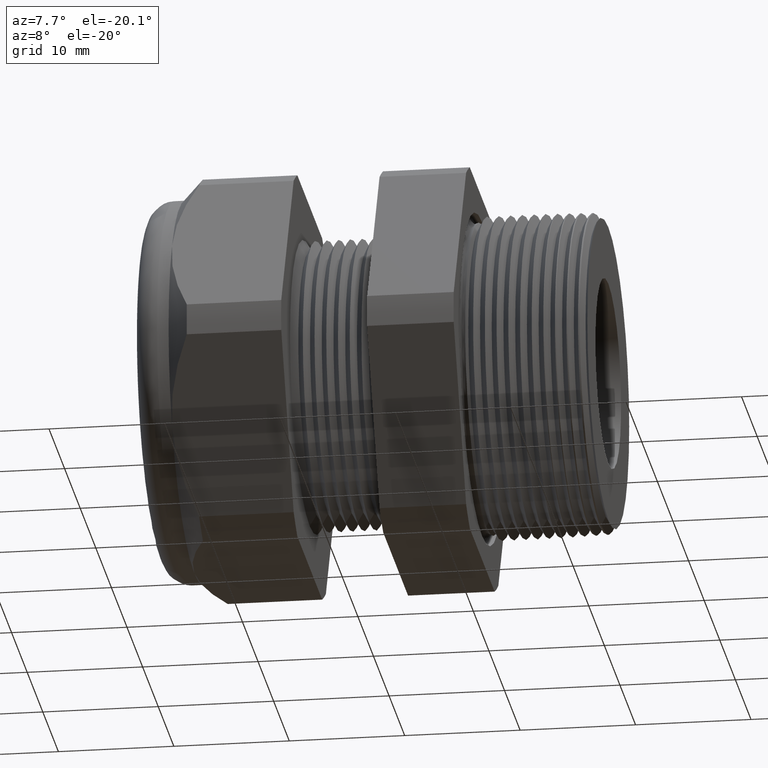
[diagram: clean part render]
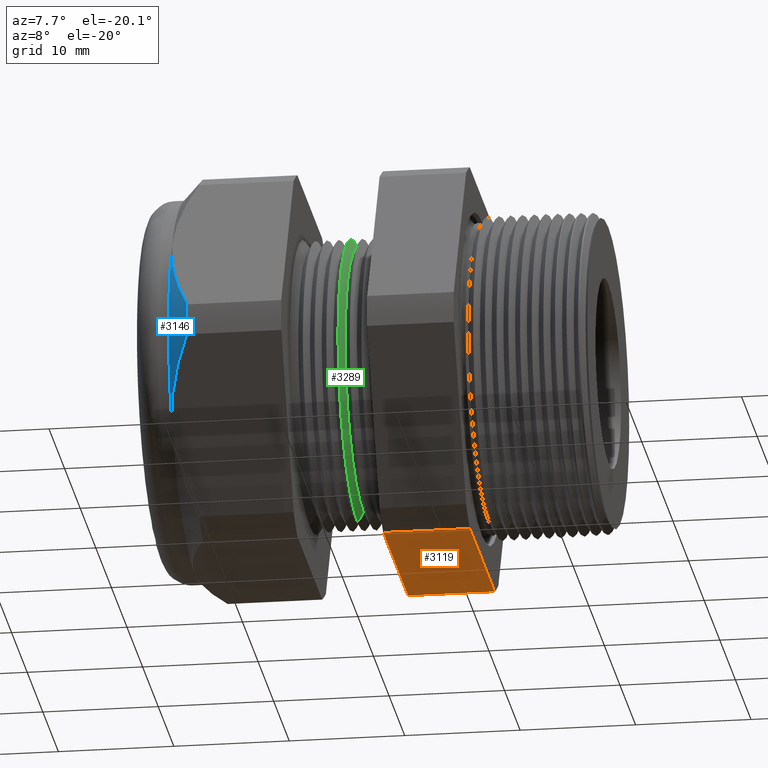
[diagram: same view with three faces highlighted in distinct colors, each labeled with its STEP entity id]
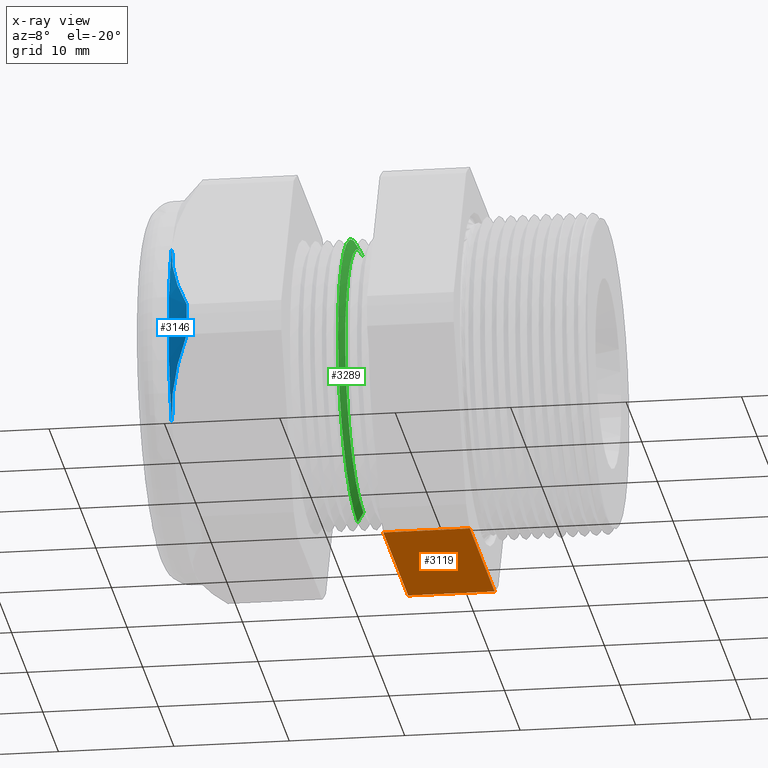
[diagram: x-ray of the same camera — body ghosted, the three highlighted faces saturated]
A machine part, auxiliary view with three faces highlighted in distinct colors.
The next image is the same camera in x-ray (body ghosted, the three faces saturated) — at least one of them is partly hidden behind the body in this view.
Their STEP definitions:

[orange] entity #3119 — the highlighted planar face has unit normal (0, 0, -1).
#50 = LINE ( 'NONE', #51, #3178 ) ;
#51 = CARTESIAN_POINT ( 'NONE',  ( -0.6052755905511809600, 1.299999999999999800, -0.6500000000000001300 ) ) ;
#202 = VERTEX_POINT ( 'NONE', #645 ) ;
#205 = VERTEX_POINT ( 'NONE', #639 ) ;
#207 = EDGE_CURVE ( 'NONE', #205, #202, #638, .T. ) ;
#638 = LINE ( 'NONE', #699, #698 ) ;
#639 = CARTESIAN_POINT ( 'NONE',  ( -0.3100000000000000000, -0.3131489262315934100, -0.6500000000000001300 ) ) ;
#645 = CARTESIAN_POINT ( 'NONE',  ( -0.3100000000000000000, 0.3131489262315934100, -0.6500000000000001300 ) ) ;
#697 = DIRECTION ( 'NONE',  ( 0.0000000000000000000, 1.000000000000000000, 0.0000000000000000000 ) ) ;
#698 = VECTOR ( 'NONE', #697, 39.37007874015748100 ) ;
#699 = CARTESIAN_POINT ( 'NONE',  ( -0.3100000000000000000, 1.300000000000000000, -0.6500000000000001300 ) ) ;
#1248 = DIRECTION ( 'NONE',  ( -1.000000000000000000, 0.0000000000000000000, 0.0000000000000000000 ) ) ;
#1249 = VECTOR ( 'NONE', #1248, 39.37007874015748100 ) ;
#1250 = CARTESIAN_POINT ( 'NONE',  ( 0.1200000000000000900, 0.3131489262315934100, -0.6500000000000001300 ) ) ;
#1251 = LINE ( 'NONE', #1250, #1249 ) ;
#1252 = CARTESIAN_POINT ( 'NONE',  ( -0.6052755905511810800, 0.3131489262315934100, -0.6500000000000001300 ) ) ;
#1276 = DIRECTION ( 'NONE',  ( -1.000000000000000000, 0.0000000000000000000, 0.0000000000000000000 ) ) ;
#1277 = VECTOR ( 'NONE', #1276, 39.37007874015748100 ) ;
#1278 = CARTESIAN_POINT ( 'NONE',  ( 0.1200000000000000900, -0.3131489262315934100, -0.6500000000000001300 ) ) ;
#1279 = LINE ( 'NONE', #1278, #1277 ) ;
#1280 = CARTESIAN_POINT ( 'NONE',  ( -0.6052755905511810800, -0.3131489262315934100, -0.6500000000000001300 ) ) ;
#1327 = DIRECTION ( 'NONE',  ( -1.000000000000000000, 0.0000000000000000000, 0.0000000000000000000 ) ) ;
#1328 = DIRECTION ( 'NONE',  ( 0.0000000000000000000, 0.0000000000000000000, -1.000000000000000000 ) ) ;
#1329 = CARTESIAN_POINT ( 'NONE',  ( 0.1200000000000000900, 0.3131489262315934100, -0.6500000000000001300 ) ) ;
#1330 = AXIS2_PLACEMENT_3D ( 'NONE', #1329, #1328, #1327 ) ;
#1331 = PLANE ( 'NONE',  #1330 ) ;
#1332 = FACE_OUTER_BOUND ( 'NONE', #3118, .T. ) ;
#3090 = VERTEX_POINT ( 'NONE', #1252 ) ;
#3091 = EDGE_CURVE ( 'NONE', #202, #3090, #1251, .T. ) ;
#3111 = ORIENTED_EDGE ( 'NONE', *, *, #3115, .F. ) ;
#3112 = VERTEX_POINT ( 'NONE', #1280 ) ;
#3113 = EDGE_CURVE ( 'NONE', #205, #3112, #1279, .T. ) ;
#3114 = ORIENTED_EDGE ( 'NONE', *, *, #3113, .T. ) ;
#3115 = EDGE_CURVE ( 'NONE', #3090, #3112, #50, .T. ) ;
#3116 = ORIENTED_EDGE ( 'NONE', *, *, #207, .F. ) ;
#3117 = ORIENTED_EDGE ( 'NONE', *, *, #3091, .F. ) ;
#3118 = EDGE_LOOP ( 'NONE', ( #3117, #3116, #3114, #3111 ) ) ;
#3119 = ADVANCED_FACE ( 'NONE', ( #1332 ), #1331, .T. ) ;
#3177 = DIRECTION ( 'NONE',  ( 0.0000000000000000000, -1.000000000000000000, 0.0000000000000000000 ) ) ;
#3178 = VECTOR ( 'NONE', #3177, 39.37007874015748100 ) ;

[blue] entity #3146 — the highlighted conical surface has half-angle 45 deg.
#1258 = DIRECTION ( 'NONE',  ( 0.0000000000000000000, 0.0000000000000000000, -1.000000000000000000 ) ) ;
#1259 = DIRECTION ( 'NONE',  ( 1.000000000000000000, 0.0000000000000000000, 0.0000000000000000000 ) ) ;
#1260 = CARTESIAN_POINT ( 'NONE',  ( -1.291889763779527500, 0.0000000000000000000, 0.0000000000000000000 ) ) ;
#1261 = AXIS2_PLACEMENT_3D ( 'NONE', #1260, #1259, #1258 ) ;
#1262 = CIRCLE ( 'NONE', #1261, 0.6500000000000000200 ) ;
#1346 = DIRECTION ( 'NONE',  ( 0.0000000000000000000, 0.0000000000000000000, 1.000000000000000000 ) ) ;
#1347 = DIRECTION ( 'NONE',  ( 1.000000000000000000, 0.0000000000000000000, 0.0000000000000000000 ) ) ;
#1348 = CARTESIAN_POINT ( 'NONE',  ( -1.291889763779527500, 0.0000000000000000000, 0.0000000000000000000 ) ) ;
#1349 = AXIS2_PLACEMENT_3D ( 'NONE', #1348, #1347, #1346 ) ;
#1351 = CONICAL_SURFACE ( 'NONE', #1349, 0.6499999999999999100, 0.7853981633974501700 ) ;
#1356 = FACE_OUTER_BOUND ( 'NONE', #3151, .T. ) ;
#2140 = CARTESIAN_POINT ( 'NONE',  ( -1.220389763779527300, -0.7194909755756819800, -0.05380507471562112600 ) ) ;
#2177 = CARTESIAN_POINT ( 'NONE',  ( -1.291889763779527500, -0.5629165124598851700, -0.3250000000000002300 ) ) ;
#2178 = CARTESIAN_POINT ( 'NONE',  ( -1.291889763779526800, -0.5696940647084650600, -0.3132609351545069800 ) ) ;
#2179 = CARTESIAN_POINT ( 'NONE',  ( -1.291460853679630100, -0.5765336067434359000, -0.3014145008494350000 ) ) ;
#2180 = CARTESIAN_POINT ( 'NONE',  ( -1.289757307482530600, -0.5901225526399741500, -0.2778777561353257300 ) ) ;
#2181 = CARTESIAN_POINT ( 'NONE',  ( -1.288488242340941200, -0.5968650273424731500, -0.2661994473818494200 ) ) ;
#2182 = CARTESIAN_POINT ( 'NONE',  ( -1.283504729739887800, -0.6169458720203931900, -0.2314184041407928400 ) ) ;
#2183 = CARTESIAN_POINT ( 'NONE',  ( -1.278613598462209300, -0.6301376168794389200, -0.2085696318044403500 ) ) ;
#2184 = CARTESIAN_POINT ( 'NONE',  ( -1.259883036713412400, -0.6692072927766706800, -0.1408989681151864000 ) ) ;
#2185 = CARTESIAN_POINT ( 'NONE',  ( -1.242011327000795800, -0.6945827664818918800, -0.09694735839161448800 ) ) ;
#2186 = CARTESIAN_POINT ( 'NONE',  ( -1.220389763779527300, -0.7194909755756819800, -0.05380507471562112600 ) ) ;
#2188 = CARTESIAN_POINT ( 'NONE',  ( -1.291889763779527500, -0.5629165124598851700, -0.3250000000000002300 ) ) ;
#2189 = B_SPLINE_CURVE_WITH_KNOTS ( 'NONE', 3,
 ( #2186, #2185, #2184, #2183, #2182, #2181, #2180, #2179, #2178, #2177 ),
 .UNSPECIFIED., .F., .F.,
 ( 4, 2, 2, 2, 4 ),
 ( 2.483249165345060900E-007, 0.004082012451910152000, 0.006122894515406963900, 0.007143335547155370300, 0.008163776578903776700 ),
 .UNSPECIFIED. ) ;
#2331 = CARTESIAN_POINT ( 'NONE',  ( -1.220389763779527300, -0.7194909755756820900, 0.05380507471562026600 ) ) ;
#2362 = CARTESIAN_POINT ( 'NONE',  ( -1.291889763779527500, -0.5629165124598853900, 0.3249999999999999600 ) ) ;
#2365 = CARTESIAN_POINT ( 'NONE',  ( -1.220389763779527300, -0.7194909755756820900, 0.05380507471562026600 ) ) ;
#2366 = CARTESIAN_POINT ( 'NONE',  ( -1.242038095775945200, -0.6945519286446000300, 0.09700077109259909500 ) ) ;
#2367 = CARTESIAN_POINT ( 'NONE',  ( -1.260161853850736600, -0.6687756690813084800, 0.1416465622853034500 ) ) ;
#2368 = CARTESIAN_POINT ( 'NONE',  ( -1.285050007405226000, -0.6165592345672921100, 0.2320880798536729700 ) ) ;
#2369 = CARTESIAN_POINT ( 'NONE',  ( -1.291889763779527500, -0.5900081318517966800, 0.2780759387538905800 ) ) ;
#2370 = CARTESIAN_POINT ( 'NONE',  ( -1.291889763779527500, -0.5629165124598853900, 0.3249999999999999600 ) ) ;
#2371 = B_SPLINE_CURVE_WITH_KNOTS ( 'NONE', 3,
 ( #2370, #2369, #2368, #2367, #2366, #2365 ),
 .UNSPECIFIED., .F., .F.,
 ( 4, 2, 4 ),
 ( 0.008163776578903781900, 0.01224274182034619900, 0.01632170706178861700 ),
 .UNSPECIFIED. ) ;
#2449 = DIRECTION ( 'NONE',  ( 0.0000000000000000000, 0.0000000000000000000, -1.000000000000000000 ) ) ;
#2450 = DIRECTION ( 'NONE',  ( 1.000000000000000000, 0.0000000000000000000, 0.0000000000000000000 ) ) ;
#2451 = CARTESIAN_POINT ( 'NONE',  ( -1.220389763779527300, 0.0000000000000000000, 0.0000000000000000000 ) ) ;
#2452 = AXIS2_PLACEMENT_3D ( 'NONE', #2451, #2450, #2449 ) ;
#2453 = CIRCLE ( 'NONE', #2452, 0.7215000000000002500 ) ;
#3086 = EDGE_CURVE ( 'NONE', #3726, #3634, #1262, .T. ) ;
#3142 = ORIENTED_EDGE ( 'NONE', *, *, #3777, .F. ) ;
#3144 = ORIENTED_EDGE ( 'NONE', *, *, #3722, .F. ) ;
#3146 = ADVANCED_FACE ( 'NONE', ( #1356 ), #1351, .T. ) ;
#3147 = ORIENTED_EDGE ( 'NONE', *, *, #3086, .T. ) ;
#3148 = ORIENTED_EDGE ( 'NONE', *, *, #3631, .F. ) ;
#3151 = EDGE_LOOP ( 'NONE', ( #3147, #3148, #3142, #3144 ) ) ;
#3628 = VERTEX_POINT ( 'NONE', #2140 ) ;
#3631 = EDGE_CURVE ( 'NONE', #3628, #3634, #2189, .T. ) ;
#3634 = VERTEX_POINT ( 'NONE', #2188 ) ;
#3718 = VERTEX_POINT ( 'NONE', #2331 ) ;
#3722 = EDGE_CURVE ( 'NONE', #3726, #3718, #2371, .T. ) ;
#3726 = VERTEX_POINT ( 'NONE', #2362 ) ;
#3777 = EDGE_CURVE ( 'NONE', #3718, #3628, #2453, .T. ) ;

[green] entity #3289 — the highlighted conical surface has half-angle 60 deg.
#1019 = DIRECTION ( 'NONE',  ( -1.000000000000000000, 0.0000000000000000000, 0.0000000000000000000 ) ) ;
#1020 = CARTESIAN_POINT ( 'NONE',  ( -0.7381889763779526700, 0.0000000000000000000, 0.0000000000000000000 ) ) ;
#1525 = CONICAL_SURFACE ( 'NONE', #1528, 0.4994999999999999400, 1.047197551196604300 ) ;
#1528 = AXIS2_PLACEMENT_3D ( 'NONE', #1020, #1019, #3214 ) ;
#1533 = FACE_OUTER_BOUND ( 'NONE', #3287, .T. ) ;
#1573 = DIRECTION ( 'NONE',  ( 0.0000000000000000000, 0.0000000000000000000, -1.000000000000000000 ) ) ;
#1574 = DIRECTION ( 'NONE',  ( 1.000000000000000000, 0.0000000000000000000, 0.0000000000000000000 ) ) ;
#1575 = CARTESIAN_POINT ( 'NONE',  ( -0.7150949656103680100, 0.0000000000000000000, 0.0000000000000000000 ) ) ;
#1576 = AXIS2_PLACEMENT_3D ( 'NONE', #1575, #1574, #1573 ) ;
#1581 = CIRCLE ( 'NONE', #1576, 0.4595000000000000200 ) ;
#1584 = DIRECTION ( 'NONE',  ( 0.0000000000000000000, 0.0000000000000000000, 1.000000000000000000 ) ) ;
#1585 = DIRECTION ( 'NONE',  ( -1.000000000000000000, 0.0000000000000000000, 0.0000000000000000000 ) ) ;
#1586 = CARTESIAN_POINT ( 'NONE',  ( -0.7350949656103678000, 0.0000000000000000000, 0.0000000000000000000 ) ) ;
#1587 = AXIS2_PLACEMENT_3D ( 'NONE', #1586, #1585, #1584 ) ;
#1588 = CIRCLE ( 'NONE', #1587, 0.4941410161513776800 ) ;
#1589 = CARTESIAN_POINT ( 'NONE',  ( -0.7381889763779526700, 0.0000000000000000000, 0.4994999999999999400 ) ) ;
#1590 = LINE ( 'NONE', #1589, #1649 ) ;
#1597 = CARTESIAN_POINT ( 'NONE',  ( -0.7350949656103678000, 6.051482137572053200E-017, 0.4941410161513777300 ) ) ;
#1643 = DIRECTION ( 'NONE',  ( -0.4999999999999943400, 1.060575238724910900E-016, -0.8660254037844418200 ) ) ;
#1644 = VECTOR ( 'NONE', #1643, 39.37007874015748100 ) ;
#1645 = CARTESIAN_POINT ( 'NONE',  ( -0.7381889763779526700, 6.117110761741028700E-017, -0.4994999999999999400 ) ) ;
#1646 = LINE ( 'NONE', #1645, #1644 ) ;
#1647 = CARTESIAN_POINT ( 'NONE',  ( -0.7350949656103678000, 0.0000000000000000000, -0.4941410161513777300 ) ) ;
#1648 = DIRECTION ( 'NONE',  ( -0.4999999999999943400, 0.0000000000000000000, 0.8660254037844418200 ) ) ;
#1649 = VECTOR ( 'NONE', #1648, 39.37007874015748100 ) ;
#2528 = CARTESIAN_POINT ( 'NONE',  ( -0.7150949656103680100, 5.839367089827070200E-017, -0.4595000000000000200 ) ) ;
#2529 = CARTESIAN_POINT ( 'NONE',  ( -0.7150949656103680100, 0.0000000000000000000, 0.4595000000000000200 ) ) ;
#3214 = DIRECTION ( 'NONE',  ( 0.0000000000000000000, 0.0000000000000000000, 1.000000000000000000 ) ) ;
#3286 = ORIENTED_EDGE ( 'NONE', *, *, #3326, .F. ) ;
#3287 = EDGE_LOOP ( 'NONE', ( #3286, #3305, #3298, #3288 ) ) ;
#3288 = ORIENTED_EDGE ( 'NONE', *, *, #3290, .F. ) ;
#3289 = ADVANCED_FACE ( 'NONE', ( #1533 ), #1525, .T. ) ;
#3290 = EDGE_CURVE ( 'NONE', #3324, #3318, #1588, .T. ) ;
#3298 = ORIENTED_EDGE ( 'NONE', *, *, #3322, .T. ) ;
#3299 = EDGE_CURVE ( 'NONE', #3802, #3803, #1581, .T. ) ;
#3305 = ORIENTED_EDGE ( 'NONE', *, *, #3299, .F. ) ;
#3318 = VERTEX_POINT ( 'NONE', #1597 ) ;
#3322 = EDGE_CURVE ( 'NONE', #3802, #3318, #1590, .T. ) ;
#3324 = VERTEX_POINT ( 'NONE', #1647 ) ;
#3326 = EDGE_CURVE ( 'NONE', #3803, #3324, #1646, .T. ) ;
#3802 = VERTEX_POINT ( 'NONE', #2529 ) ;
#3803 = VERTEX_POINT ( 'NONE', #2528 ) ;